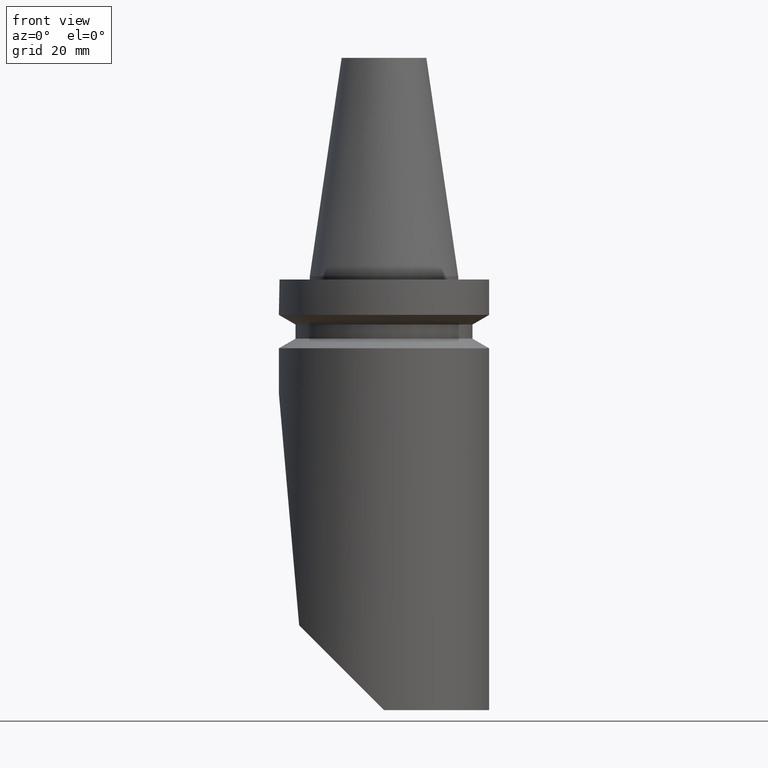
[diagram: clean part render]
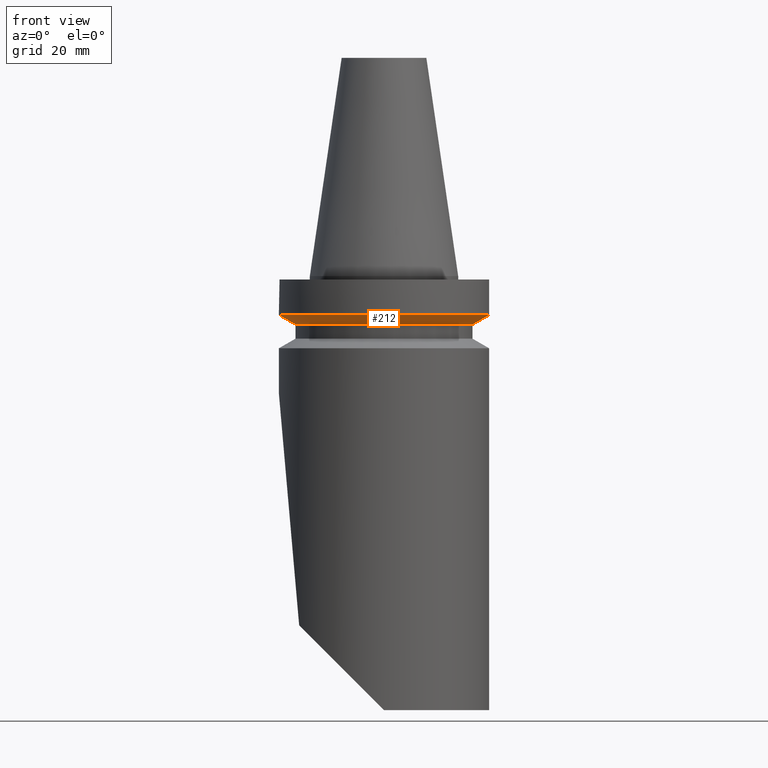
[diagram: same view with one face highlighted and labeled with its STEP entity id]
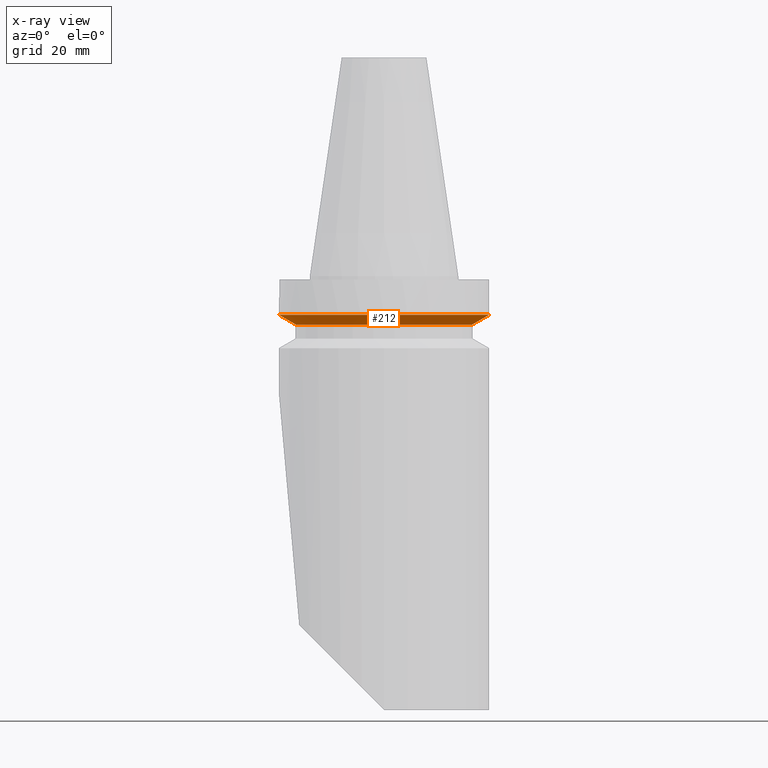
[diagram: x-ray of the same camera — body ghosted, the highlighted face saturated]
A machine part, front view. The second image highlights one B-rep face of the part: STEP entity #212.
The next image is the same camera in x-ray: the body ghosted, the highlighted face saturated — about 0% of this face is hidden behind the body in this view.
In plain terms, the highlighted conical surface has half-angle 60 deg.
Its self-contained STEP definition (entity closure, byte-faithful):
#105=EDGE_CURVE('240[2]',#282,#282,#283,.T.);
#198=EDGE_CURVE('240[2]',#408,#408,#409,.T.);
#212=ADVANCED_FACE('240[2]',(#427,#428),#429,.T.);
#282=VERTEX_POINT('',#518);
#283=CIRCLE('',#519,31.5);
#408=VERTEX_POINT('',#698);
#409=CIRCLE('',#699,26.5);
#427=FACE_BOUND('',#723,.T.);
#428=FACE_BOUND('',#724,.T.);
#429=CONICAL_SURFACE('',#725,29.0,1.04719755058882);
#518=CARTESIAN_POINT('',(-31.5000000001728,5.07616098249752E-015,-11.6));
#519=AXIS2_PLACEMENT_3D('',#778,#779,#780);
#698=CARTESIAN_POINT('',(26.5,-5.75502871015178E-015,-14.48675135));
#699=AXIS2_PLACEMENT_3D('',#935,#936,#937);
#723=EDGE_LOOP('',(#963));
#724=EDGE_LOOP('',(#964));
#725=AXIS2_PLACEMENT_3D('',#965,#966,#967);
#778=CARTESIAN_POINT('',(1.42059028701093E-015,-7.10295143505465E-016,-11.6));
#779=DIRECTION('',(1.22464679914735E-016,-6.12323399573677E-017,-1.0));
#780=DIRECTION('',(1.0,-1.83697019872103E-016,1.22464679914735E-016));
#935=CARTESIAN_POINT('',(1.77411536708211E-015,-8.87057683541056E-016,-14.48675135));
#936=DIRECTION('',(1.22464679914735E-016,-6.12323399573677E-017,-1.0));
#937=DIRECTION('',(1.0,-1.83697019872103E-016,1.22464679914735E-016));
#963=ORIENTED_EDGE('',*,*,#198,.F.);
#964=ORIENTED_EDGE('',*,*,#105,.T.);
#965=CARTESIAN_POINT('',(1.59735282704652E-015,-7.98676413523261E-016,-13.043375675));
#966=DIRECTION('',(-1.22464679914735E-016,6.12323399573677E-017,1.0));
#967=DIRECTION('',(1.0,-1.83697019872103E-016,1.22464679914735E-016));